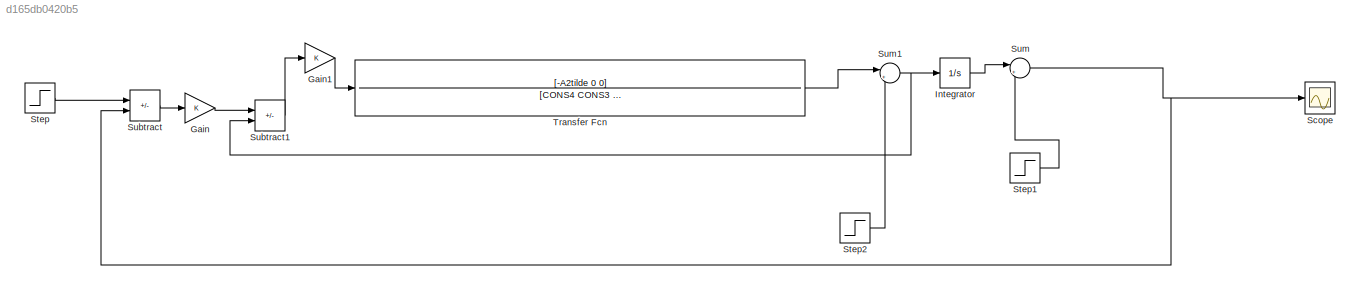
MODEL slx_d165db0420b5
KIND model
CONFIG AbsTol = auto
CONFIG EnableMultiTasking = off
CONFIG FixedStep = auto
CONFIG InitFcn = Rm=3.15;\nLm=0.0015;\nK=1.028;\nk=1.028;\nfm=0.16805;\nA2=0.0033153;\nA1=0.045721;\nL01=0.2625;\nm2=0.24355;\nA1tilde=A1+A2+m2*L01*L01;\nA2tilde=A1tilde-A2;\nf=0.070633;\nlg1=0.16655703376925832;\nm1=0.66984;\ng=9.8;\nCeq=L01*m2*g+lg1*m1*g;\nCONS4=(A2*A1tilde-A2*A2tilde)*Lm/K;\nCONS3=(A2*(A1tilde-A2tilde)*(Rm/K)+(Lm/K)*(f*A2+A1tilde*fm));\nCONS2=((Rm/K)*(f*A2+A1tilde*fm)+(Lm/K)*((f*fm-Ceq*A2)+K*f));\nCONS1=((Rm/K)*(...<+63ch>
CONFIG MaxStep = auto
CONFIG MinStep = auto
CONFIG RelTol = 1e-3
CONFIG SampleTimeConstraint = Unconstrained
CONFIG SolverName = VariableStepAuto
CONFIG StartTime = 0.0
CONFIG StopTime = 10
BLOCK [Gain] Gain
BLOCK [Gain] Gain1
BLOCK [Integrator] Integrator
BLOCK [Scope] Scope
  Floating = off
  NumInputPorts = 1
  ScopeSpecificationString = Simulink.scopes.TimeScopeBlockCfg('CurrentConfiguration', extmgr.ConfigurationSet(extmgr.Configuration('Core','General UI',true),extmgr.Configuration('Core','Source UI',true),extmgr.Configuration('Sources','WiredSimulink',true),extmgr.Configuration('Visuals','Time Domain',true,'SerializedDisplays',{struct('MinYLimReal','-79488254763728778517798305928001844989232845250559360412551799855078894559921...<+3005ch>
BLOCK [Step] Step
  After = 0
  SampleTime = 0
  Time = 30
BLOCK [Step] Step1
  After = 0
  SampleTime = 0
  Time = 0.1
BLOCK [Step] Step2
  After = 0
  Before = 1
  SampleTime = 0
  Time = 0.1
BLOCK [Sum] Subtract
  IconShape = rectangular
  Inputs = +-
BLOCK [Sum] Subtract1
  IconShape = rectangular
  Inputs = +-
BLOCK [Sum] Sum
  Inputs = |++
BLOCK [Sum] Sum1
  Inputs = |++
BLOCK [TransferFcn] Transfer Fcn
  Denominator = [CONS4 CONS3 CONS2 CONS1 CONS0]
  Numerator = [-A2tilde 0 0]
LINE Gain1:1 -> Transfer Fcn:1
LINE Gain:1 -> Subtract1:1
LINE Integrator:1 -> Sum:1
LINE Step1:1 -> Sum:2
LINE Step2:1 -> Sum1:2
LINE Step:1 -> Subtract:1
LINE Subtract1:1 -> Gain1:1
LINE Subtract:1 -> Gain:1
NET Sum1:1 -> Integrator:1, Subtract1:2
NET Sum:1 -> Scope:1, Subtract:2
LINE Transfer Fcn:1 -> Sum1:1
note: NET lines group one-source signal fan-out (src -> all destinations, sorted); 1:1 wires keep LINE
